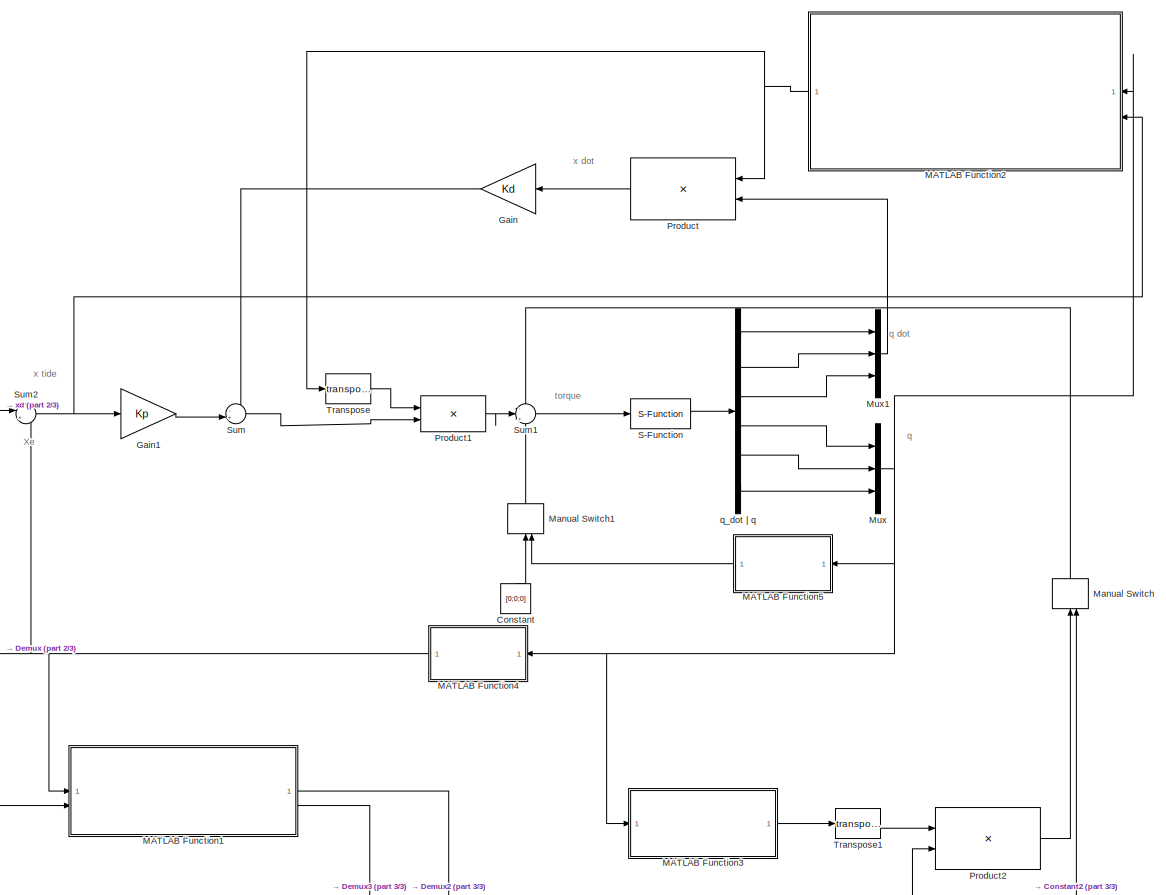
[diagram: root canvas - part 1/3, center side, full height]
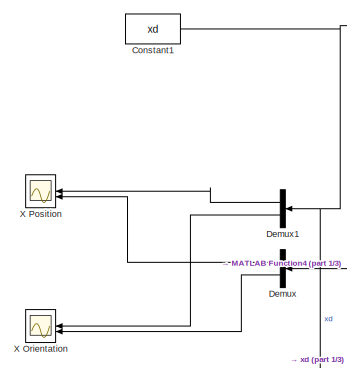
[diagram: root canvas - part 2/3, middle left region]
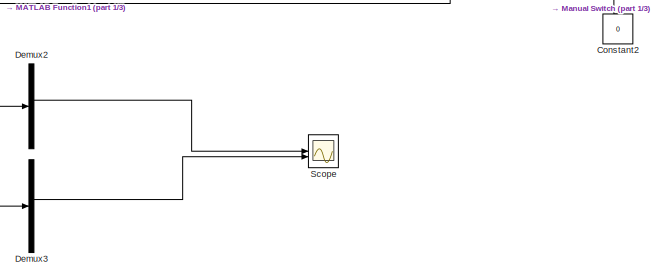
[diagram: root canvas - part 3/3, bottom right region]
MODEL slx_679b67243711
KIND model
CONFIG AbsTol = auto
CONFIG EnableMultiTasking = off
CONFIG FixedStep = auto
CONFIG MaxStep = auto
CONFIG MinStep = auto
CONFIG RelTol = 1e-3
CONFIG SampleTimeConstraint = Unconstrained
CONFIG SolverName = VariableStepAuto
CONFIG StartTime = 0.0
CONFIG StopTime = 3
BLOCK [Constant] Constant
  NameLocation = right
  Value = [0;0;0]
BLOCK [Constant] Constant1
  Value = xd
  VectorParams1D = off
BLOCK [Constant] Constant2
  NameLocation = right
  Value = 0
BLOCK [Demux] Demux
  Outputs = 2
BLOCK [Demux] Demux1
  Outputs = 2
BLOCK [Demux] Demux2
  Outputs = 6
BLOCK [Demux] Demux3
  Outputs = 6
BLOCK [Gain] Gain
  Gain = Kd
  Multiplication = Matrix(K*u)
  NameLocation = top
BLOCK [Gain] Gain1
  Gain = Kp
  Multiplication = Matrix(K*u)
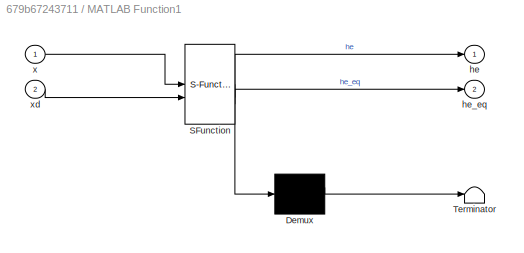
BLOCK [SubSystem] MATLAB Function1
  ErrorFcn = Stateflow.Translate.translate
  LibrarySourceBlock = simulink/User-Defined\nFunctions/MATLAB Function
  PermitHierarchicalResolution = ExplicitOnly
  SFBlockType = MATLAB Function
  TreatAsAtomicUnit = on
BLOCK [Demux] MATLAB Function1/ Demux 
  Outputs = 1
BLOCK [S-Function] MATLAB Function1/ SFunction 
  EnableBusSupport = on
  FunctionName = sf_sfun
  Parameters = Kp,parms
  PortCounts = [2 3]
  SFcnIsStateOwnerBlock = off
  SFunctionDeploymentMode = off
  Tag = Stateflow S-Function 1
BLOCK [Terminator] MATLAB Function1/ Terminator 
BLOCK [Outport] MATLAB Function1/he
BLOCK [Outport] MATLAB Function1/he_eq
  Port = 2
BLOCK [Inport] MATLAB Function1/x
BLOCK [Inport] MATLAB Function1/xd
  Port = 2
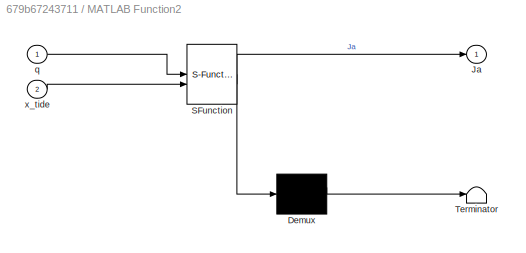
BLOCK [SubSystem] MATLAB Function2
  ErrorFcn = Stateflow.Translate.translate
  LibrarySourceBlock = simulink/User-Defined\nFunctions/MATLAB Function
  NameLocation = top
  PermitHierarchicalResolution = ExplicitOnly
  SFBlockType = MATLAB Function
  TreatAsAtomicUnit = on
BLOCK [Demux] MATLAB Function2/ Demux 
  Outputs = 1
BLOCK [S-Function] MATLAB Function2/ SFunction 
  EnableBusSupport = on
  FunctionName = sf_sfun
  PortCounts = [2 2]
  SFcnIsStateOwnerBlock = off
  SFunctionDeploymentMode = off
  Tag = Stateflow S-Function 3
BLOCK [Terminator] MATLAB Function2/ Terminator 
BLOCK [Outport] MATLAB Function2/Ja
BLOCK [Inport] MATLAB Function2/q
BLOCK [Inport] MATLAB Function2/x_tide
  Port = 2
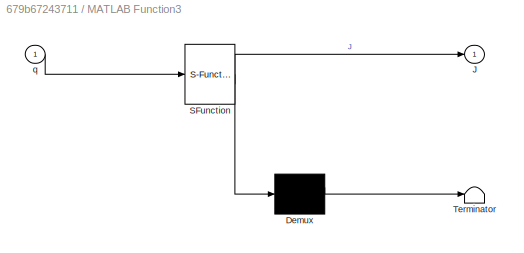
BLOCK [SubSystem] MATLAB Function3
  ErrorFcn = Stateflow.Translate.translate
  LibrarySourceBlock = simulink/User-Defined\nFunctions/MATLAB Function
  PermitHierarchicalResolution = ExplicitOnly
  SFBlockType = MATLAB Function
  TreatAsAtomicUnit = on
BLOCK [Demux] MATLAB Function3/ Demux 
  Outputs = 1
BLOCK [S-Function] MATLAB Function3/ SFunction 
  EnableBusSupport = on
  FunctionName = sf_sfun
  PortCounts = [1 2]
  SFcnIsStateOwnerBlock = off
  SFunctionDeploymentMode = off
  Tag = Stateflow S-Function 4
BLOCK [Terminator] MATLAB Function3/ Terminator 
BLOCK [Outport] MATLAB Function3/J
BLOCK [Inport] MATLAB Function3/q
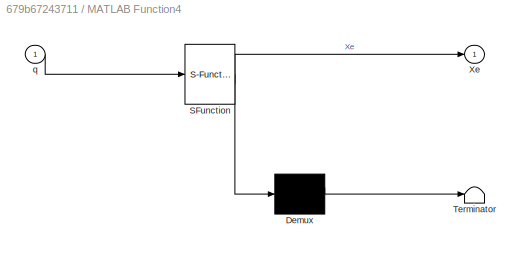
BLOCK [SubSystem] MATLAB Function4
  ErrorFcn = Stateflow.Translate.translate
  LibrarySourceBlock = simulink/User-Defined\nFunctions/MATLAB Function
  NameLocation = top
  PermitHierarchicalResolution = ExplicitOnly
  SFBlockType = MATLAB Function
  TreatAsAtomicUnit = on
BLOCK [Demux] MATLAB Function4/ Demux 
  Outputs = 1
BLOCK [S-Function] MATLAB Function4/ SFunction 
  EnableBusSupport = on
  FunctionName = sf_sfun
  PortCounts = [1 2]
  SFcnIsStateOwnerBlock = off
  SFunctionDeploymentMode = off
  Tag = Stateflow S-Function 5
BLOCK [Terminator] MATLAB Function4/ Terminator 
BLOCK [Outport] MATLAB Function4/Xe
BLOCK [Inport] MATLAB Function4/q
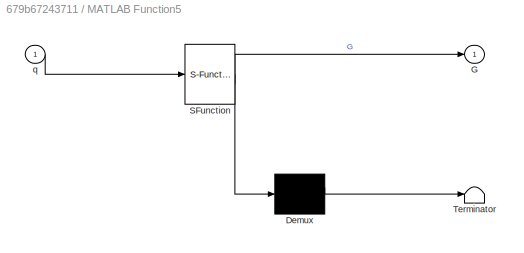
BLOCK [SubSystem] MATLAB Function5
  ErrorFcn = Stateflow.Translate.translate
  LibrarySourceBlock = simulink/User-Defined\nFunctions/MATLAB Function
  NameLocation = top
  PermitHierarchicalResolution = ExplicitOnly
  SFBlockType = MATLAB Function
  TreatAsAtomicUnit = on
BLOCK [Demux] MATLAB Function5/ Demux 
  Outputs = 1
BLOCK [S-Function] MATLAB Function5/ SFunction 
  EnableBusSupport = on
  FunctionName = sf_sfun
  Parameters = params
  PortCounts = [1 2]
  SFcnIsStateOwnerBlock = off
  SFunctionDeploymentMode = off
  Tag = Stateflow S-Function 2
BLOCK [Terminator] MATLAB Function5/ Terminator 
BLOCK [Outport] MATLAB Function5/G
BLOCK [Inport] MATLAB Function5/q
BLOCK [ManualSwitch] Manual Switch
  CurrentSetting = 0
  NameLocation = right
BLOCK [ManualSwitch] Manual Switch1
  CurrentSetting = 0
BLOCK [Mux] Mux
  DisplayOption = bar
  Inputs = 3
BLOCK [Mux] Mux1
  DisplayOption = bar
  Inputs = 3
BLOCK [Product] Product
  Multiplication = Matrix(*)
BLOCK [Product] Product1
  Multiplication = Matrix(*)
BLOCK [Product] Product2
  Multiplication = Matrix(*)
BLOCK [S-Function] S-Function
  EnableBusSupport = off
  FunctionName = Manipulator
  Parameters = params
  SFcnIsStateOwnerBlock = off
  SFunctionDeploymentMode = off
BLOCK [Scope] Scope
  Floating = off
  NumInputPorts = 2
  ScopeSpecificationString = Simulink.scopes.TimeScopeBlockCfg('CurrentConfiguration', extmgr.ConfigurationSet(extmgr.Configuration('Core','General UI',true),extmgr.Configuration('Core','Source UI',true),extmgr.Configuration('Sources','WiredSimulink',true,'DataLoggingVariableName','ScopeData1'),extmgr.Configuration('Visuals','Time Domain',true,'SerializedDisplays',{struct('MinYLimReal','-1.00000','MaxYLimReal','1.00000','YLab...<+1690ch>
BLOCK [Sum] Sum
  Inputs = -+|
BLOCK [Sum] Sum1
  Inputs = -|++
BLOCK [Sum] Sum2
  Inputs = |+-
BLOCK [Math] Transpose
  Operator = transpose
  RndMeth = Zero
  SignedPower = on
BLOCK [Math] Transpose1
  Operator = transpose
  RndMeth = Zero
  SignedPower = on
BLOCK [Scope] X Orientation
  Floating = off
  NumInputPorts = 2
  ScopeSpecificationString = Simulink.scopes.TimeScopeBlockCfg('CurrentConfiguration', extmgr.ConfigurationSet(extmgr.Configuration('Core','General UI',true),extmgr.Configuration('Core','Source UI',true),extmgr.Configuration('Sources','WiredSimulink',true,'DataLoggingVariableName','ScopeData1'),extmgr.Configuration('Visuals','Time Domain',true,'SerializedDisplays',{struct('MinYLimReal','-3.46884','MaxYLimReal','-0.19635','YLa...<+1912ch>
BLOCK [Scope] X Position
  Floating = off
  NumInputPorts = 2
  ScopeSpecificationString = Simulink.scopes.TimeScopeBlockCfg('CurrentConfiguration', extmgr.ConfigurationSet(extmgr.Configuration('Core','General UI',true),extmgr.Configuration('Core','Source UI',true),extmgr.Configuration('Sources','WiredSimulink',true),extmgr.Configuration('Visuals','Time Domain',true,'SerializedDisplays',{struct('MinYLimReal','-0.84121','MaxYLimReal','0.97093','YLabelReal','','MinYLimMag','0.00000','MaxY...<+1902ch>
BLOCK [Demux] q_dot | q
  Outputs = 6
ANNOTATION (root): Xe
ANNOTATION (root): q dot
ANNOTATION (root): q
ANNOTATION (root): x dot
ANNOTATION (root): torque
ANNOTATION (root): x tide
NET Constant1:1 -> Demux1:1, MATLAB Function1:2, Sum2:1
LINE Constant2:1 -> Manual Switch:2
LINE Constant:1 -> Manual Switch1:1
LINE Demux1:1 -> X Position:1
LINE Demux1:2 -> X Orientation:1
LINE Demux2:3 -> Scope:1
LINE Demux3:3 -> Scope:2
LINE Demux:1 -> X Position:2
LINE Demux:2 -> X Orientation:2
LINE Gain1:1 -> Sum:2
LINE Gain:1 -> Sum:1
NET MATLAB Function1:1 -> Demux2:1, Product2:2
LINE MATLAB Function1:2 -> Demux3:1
NET MATLAB Function2:1 -> Product:1, Transpose:1
LINE MATLAB Function3:1 -> Transpose1:1
NET MATLAB Function4:1 -> Demux:1, MATLAB Function1:1, Sum2:2
LINE MATLAB Function5:1 -> Manual Switch1:2
LINE Manual Switch1:1 -> Sum1:3
LINE Manual Switch:1 -> Sum1:1
LINE Mux1:1 -> Product:2
NET Mux:1 -> MATLAB Function2:1, MATLAB Function3:1, MATLAB Function4:1, MATLAB Function5:1
LINE Product1:1 -> Sum1:2
LINE Product2:1 -> Manual Switch:1
LINE Product:1 -> Gain:1
LINE S-Function:1 -> q_dot | q:1
LINE Sum1:1 -> S-Function:1
NET Sum2:1 -> Gain1:1, MATLAB Function2:2
LINE Sum:1 -> Product1:2
LINE Transpose1:1 -> Product2:1
LINE Transpose:1 -> Product1:1
LINE q_dot | q:1 -> Mux1:1
LINE q_dot | q:2 -> Mux1:2
LINE q_dot | q:3 -> Mux1:3
LINE q_dot | q:4 -> Mux:1
LINE q_dot | q:5 -> Mux:2
LINE q_dot | q:6 -> Mux:3
note: NET lines group one-source signal fan-out (src -> all destinations, sorted); 1:1 wires keep LINE
CHART MATLAB Function1 states=1 transitions=1
  STATE_LABEL 'eML_blk_kernel()'
  STATE_LABEL 'SCRIPT:\nfunction [he,he_eq]= Environment(x, xd, parms, Kp)\n    if(x(parms.plane_axis) >= parms.plane_pos(parms.plane_axis))\n        xr = parms.plane_pos;\n\n        xdes = zeros(6,1);\n        xdes(parms.plane_axis) = xd(parms.plane_axis);\n\n        xe = zeros(6,1);\n        xe(parms.plane_axis) = x(parms.plane_axis);\n\n        he = parms.Ke * (xe - xr);\n\n        he_eq = pinv(eye(6) + parms.Ke*pinv(Kp))...<+98ch>'
CHART MATLAB Function5 states=1 transitions=1
  STATE_LABEL 'eML_blk_kernel()'
  STATE_LABEL 'SCRIPT:\nfunction G = gravityMatrix(q, params)\n    q1 = q(1);\n    q2 = q(2);\n    q3 = q(3);\n    \n    g = params.g;\n\n    m1 = params.m(1);\n    m2 = params.m(2);\n    m3 = params.m(3);\n\n    a1 = 0.02;\n    a2 = 0.03;\n    a3 = 0.01;\n    b1 = 0.1256;\n    b2 = 0.03;\n    b3 = 0.01;\n    c1 = 0.4;\n    c2 = 0.46;\n    c3 = 0.15;\n\n    G = [(c1*g*m1*cos(q1))/2 + g*m2*cos(q1)*(c1 - c2/2) + g*m3*cos(q1)*(c1 + c3/2...<+44ch>'
CHART MATLAB Function2 states=1 transitions=1
  STATE_LABEL 'eML_blk_kernel()'
  STATE_LABEL 'SCRIPT:\nfunction Ja = AnalyticalJacobian(q,x_tide)\n\n    %use desired frame reference, 1 is desired frame\n    flag = 0;\n\n    q1 = q(1);\n    q2 = q(2);\n    q3 = q(3);\n\n    r1 = 0.4;\n    a1 = 0.02;\n    a2 = 0.03;\n    a3 = 0.01;\n    b1 = 0.1256;\n    b2 = 0.03;\n    b3 = 0.01;\n    c1 = 0.4;\n    c2 = 0.46;\n    c3 = 0.15;\n\n    if flag == 0\n     H = [[0, -sin(q1), cos(q1),              cos(q1)*(c1 + c3 + q...<+1388ch>'
CHART MATLAB Function3 states=1 transitions=1
  STATE_LABEL 'eML_blk_kernel()'
  STATE_LABEL 'SCRIPT:\nfunction J = GeomatricalJacobian(q)\nq1 = q(1);\nq2 = q(2);\nq3 = q(3);\nc1 = 0.4;\nc2 = 0.3;\nc3 = 0.16;\nr1 = 0.15;\n\n    J = [\n[-sin(q1)*(c1 + c3 + q3),  0, cos(q1)]\n[                      0, -1,       0]\n[ cos(q1)*(c1 + c3 + q3),  0, sin(q1)]\n[                      0,  0,       0]\n[                     -1,  0,       0]\n[                      0,  0,       0]\n];\n    \nend\n'
CHART MATLAB Function4 states=1 transitions=1
  STATE_LABEL 'eML_blk_kernel()'
  STATE_LABEL 'SCRIPT:\nfunction Xe = Kinematics(q)\n    q1 = q(1);\n    q2 = q(2);\n    q3 = q(3);\n    \n    r1 = 0.4;\n    a1 = 0.02;\n    a2 = 0.03;\n    a3 = 0.01;\n    b1 = 0.1256;\n    b2 = 0.03;\n    b3 = 0.01;\n    c1 = 0.4;\n    c2 = 0.46;\n    c3 = 0.15;\n\n\n H = [[0, -sin(q1), cos(q1),              cos(q1)*(c1 + c3 + q3)]\n[1,        0,       0,                           - c2 - q2]\n[0,  cos(q1), sin(q1), r1 + sin(q1)*...<+164ch>'
CHART  states=0 transitions=0
CHART  states=0 transitions=0
CHART  states=0 transitions=0
CHART  states=0 transitions=0
CHART  states=0 transitions=0
